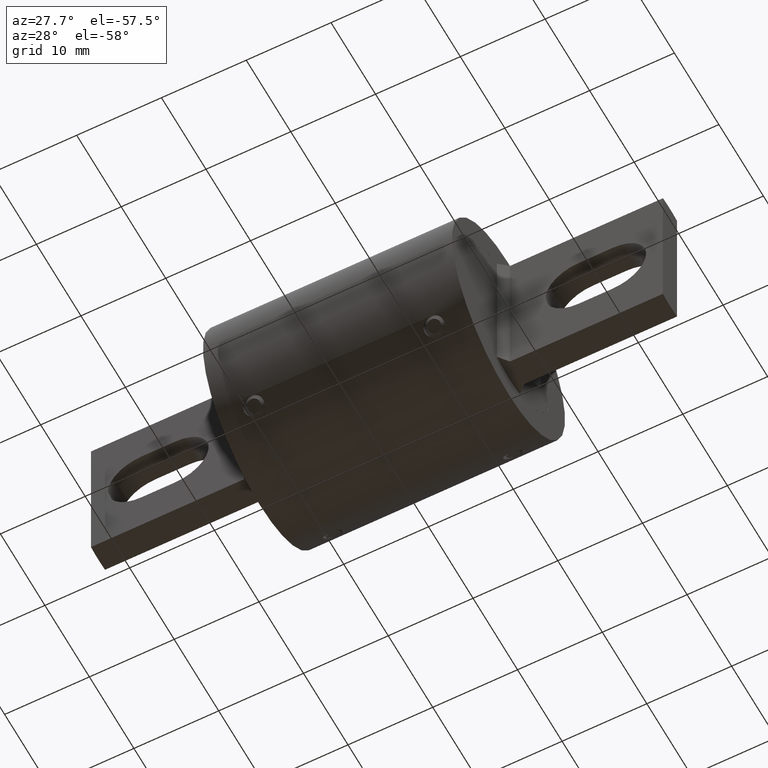
[diagram: clean part render]
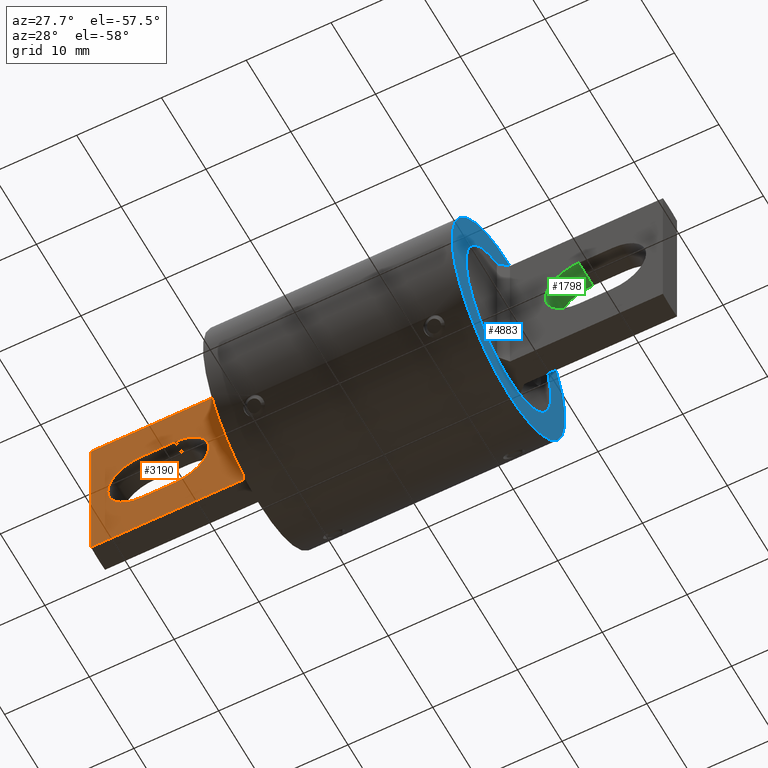
[diagram: same view with three faces highlighted in distinct colors, each labeled with its STEP entity id]
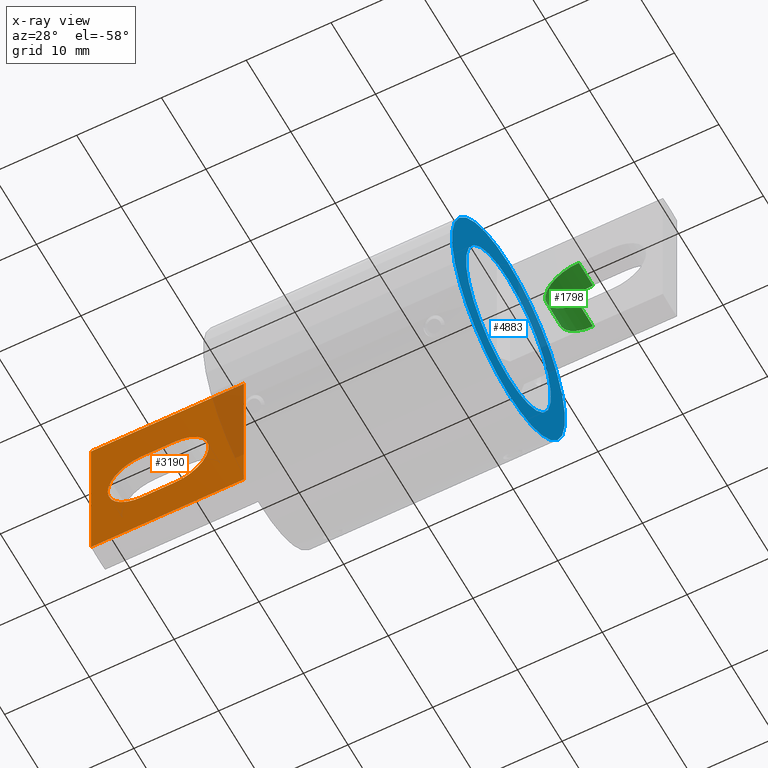
[diagram: x-ray of the same camera — body ghosted, the three highlighted faces saturated]
A machine part, auxiliary view with three faces highlighted in distinct colors.
The next image is the same camera in x-ray (body ghosted, the three faces saturated) — at least one of them is partly hidden behind the body in this view.
Their STEP definitions:

[orange] entity #3190 — the highlighted planar face has unit normal (0, -1, -0).
#170 = DIRECTION ( 'NONE',  ( 1.639038160135599900E-015, 3.053113317719178500E-016, 1.000000000000000000 ) ) ;
#181 = FACE_BOUND ( 'NONE', #463, .T. ) ;
#212 = PLANE ( 'NONE',  #1837 ) ;
#253 = CARTESIAN_POINT ( 'NONE',  ( -0.6180999999999999800, -0.06249999999999993800, 0.3656976209930826200 ) ) ;
#375 = EDGE_CURVE ( 'NONE', #2877, #5253, #2307, .T. ) ;
#463 = EDGE_LOOP ( 'NONE', ( #1794, #3218, #2097, #3995, #1661 ) ) ;
#547 = LINE ( 'NONE', #4023, #4917 ) ;
#653 = DIRECTION ( 'NONE',  ( 2.096245319270468400E-016, -1.000000000000000000, -3.816391647148977100E-016 ) ) ;
#656 = EDGE_LOOP ( 'NONE', ( #2777, #4102, #2760, #3584 ) ) ;
#672 = CARTESIAN_POINT ( 'NONE',  ( -1.328100000000000500, -0.06250000000000012500, 0.3656976209930839500 ) ) ;
#716 = FACE_OUTER_BOUND ( 'NONE', #656, .T. ) ;
#747 = LINE ( 'NONE', #1571, #2851 ) ;
#989 = CARTESIAN_POINT ( 'NONE',  ( -1.094099999999999600, -0.06250000000000031900, 0.1560000000000012200 ) ) ;
#1063 = CARTESIAN_POINT ( 'NONE',  ( -1.328100000000000700, -0.06250000000000031900, -0.3656976209930805100 ) ) ;
#1092 = CARTESIAN_POINT ( 'NONE',  ( -1.328100000000000500, -0.06250000000000012500, 0.3656976209930839500 ) ) ;
#1109 = DIRECTION ( 'NONE',  ( -1.000000000000000000, -2.096245319270477000E-016, 2.135355323886558800E-015 ) ) ;
#1131 = EDGE_CURVE ( 'NONE', #5253, #4937, #5308, .T. ) ;
#1255 = CARTESIAN_POINT ( 'NONE',  ( -1.094099999999999900, -0.06250000000000020800, 1.238887046350619100E-015 ) ) ;
#1306 = EDGE_CURVE ( 'NONE', #4103, #2877, #3702, .T. ) ;
#1388 = CARTESIAN_POINT ( 'NONE',  ( -0.5781000000000001700, -0.06250000000000011100, -0.1559999999999996400 ) ) ;
#1497 = VECTOR ( 'NONE', #4460, 39.37007874015748100 ) ;
#1571 = CARTESIAN_POINT ( 'NONE',  ( -0.5780999999999992800, -0.06249999999999997200, 0.3656976209930822300 ) ) ;
#1661 = ORIENTED_EDGE ( 'NONE', *, *, #1131, .F. ) ;
#1691 = CIRCLE ( 'NONE', #3294, 0.1559999999999999200 ) ;
#1758 = DIRECTION ( 'NONE',  ( 1.000000000000000000, 2.096245319270477000E-016, -1.917156602347880000E-015 ) ) ;
#1794 = ORIENTED_EDGE ( 'NONE', *, *, #375, .F. ) ;
#1837 = AXIS2_PLACEMENT_3D ( 'NONE', #3603, #653, #3177 ) ;
#1866 = CARTESIAN_POINT ( 'NONE',  ( -0.6180999999999998700, -0.06249999999999993800, 0.3656976209930826200 ) ) ;
#1895 = EDGE_CURVE ( 'NONE', #3842, #4618, #2348, .T. ) ;
#1938 = DIRECTION ( 'NONE',  ( -1.302295984605395700E-016, -1.000000000000000000, -3.816391647148969700E-016 ) ) ;
#1995 = DIRECTION ( 'NONE',  ( -1.000000000000000000, -2.096245319270477000E-016, 2.135355323886558800E-015 ) ) ;
#2097 = ORIENTED_EDGE ( 'NONE', *, *, #2652, .F. ) ;
#2133 = DIRECTION ( 'NONE',  ( 1.000000000000000000, 2.188980764154058300E-016, -2.135355323886559200E-015 ) ) ;
#2134 = CARTESIAN_POINT ( 'NONE',  ( -0.9376000000000001000, -0.06250000000000030500, -0.1559999999999990300 ) ) ;
#2307 = CIRCLE ( 'NONE', #5038, 0.1559999999999999200 ) ;
#2334 = CARTESIAN_POINT ( 'NONE',  ( -1.250099999999999800, -0.06250000000000019400, 1.595854924671602700E-015 ) ) ;
#2348 = LINE ( 'NONE', #253, #1497 ) ;
#2379 = CIRCLE ( 'NONE', #2692, 0.1559999999999999200 ) ;
#2416 = VERTEX_POINT ( 'NONE', #2334 ) ;
#2652 = EDGE_CURVE ( 'NONE', #2416, #4103, #1691, .T. ) ;
#2655 = VERTEX_POINT ( 'NONE', #672 ) ;
#2692 = AXIS2_PLACEMENT_3D ( 'NONE', #1255, #4326, #5384 ) ;
#2706 = EDGE_CURVE ( 'NONE', #3571, #2655, #5020, .T. ) ;
#2760 = ORIENTED_EDGE ( 'NONE', *, *, #4435, .T. ) ;
#2777 = ORIENTED_EDGE ( 'NONE', *, *, #3198, .F. ) ;
#2851 = VECTOR ( 'NONE', #1995, 39.37007874015748100 ) ;
#2877 = VERTEX_POINT ( 'NONE', #2134 ) ;
#2934 = VECTOR ( 'NONE', #170, 39.37007874015748100 ) ;
#3177 = DIRECTION ( 'NONE',  ( 1.000000000000000000, 2.096245319270476500E-016, -2.135355323886558800E-015 ) ) ;
#3190 = ADVANCED_FACE ( 'NONE', ( #181, #716 ), #212, .T. ) ;
#3198 = EDGE_CURVE ( 'NONE', #3842, #3571, #547, .T. ) ;
#3218 = ORIENTED_EDGE ( 'NONE', *, *, #1306, .F. ) ;
#3230 = CARTESIAN_POINT ( 'NONE',  ( -0.6181000000000012000, -0.06250000000000013900, -0.3656976209930818400 ) ) ;
#3294 = AXIS2_PLACEMENT_3D ( 'NONE', #5365, #1938, #3660 ) ;
#3316 = EDGE_CURVE ( 'NONE', #4937, #2416, #2379, .T. ) ;
#3397 = DIRECTION ( 'NONE',  ( -1.000000000000000000, -2.096245319270474500E-016, 2.789951488502596100E-015 ) ) ;
#3416 = CARTESIAN_POINT ( 'NONE',  ( -0.5780999999999997300, -0.06250000000000004200, 0.1559999999999999200 ) ) ;
#3426 = VECTOR ( 'NONE', #1758, 39.37007874015748100 ) ;
#3571 = VERTEX_POINT ( 'NONE', #1063 ) ;
#3584 = ORIENTED_EDGE ( 'NONE', *, *, #2706, .F. ) ;
#3603 = CARTESIAN_POINT ( 'NONE',  ( -0.5780999999999992800, -0.06249999999999997200, 0.3656976209930822300 ) ) ;
#3660 = DIRECTION ( 'NONE',  ( 1.000000000000000000, 2.188980764154058300E-016, -2.135355323886559200E-015 ) ) ;
#3702 = LINE ( 'NONE', #1388, #3426 ) ;
#3842 = VERTEX_POINT ( 'NONE', #3230 ) ;
#3995 = ORIENTED_EDGE ( 'NONE', *, *, #3316, .F. ) ;
#4023 = CARTESIAN_POINT ( 'NONE',  ( -0.5781000000000006100, -0.06250000000000018000, -0.3656976209930822300 ) ) ;
#4102 = ORIENTED_EDGE ( 'NONE', *, *, #1895, .T. ) ;
#4103 = VERTEX_POINT ( 'NONE', #4366 ) ;
#4210 = DIRECTION ( 'NONE',  ( -1.302295984605395700E-016, -1.000000000000000000, -3.816391647148969700E-016 ) ) ;
#4326 = DIRECTION ( 'NONE',  ( -1.302295984605395700E-016, -1.000000000000000000, -3.816391647148969700E-016 ) ) ;
#4366 = CARTESIAN_POINT ( 'NONE',  ( -1.094100000000000500, -0.06250000000000016700, -0.1559999999999987500 ) ) ;
#4435 = EDGE_CURVE ( 'NONE', #4618, #2655, #747, .T. ) ;
#4460 = DIRECTION ( 'NONE',  ( 1.639038160135599900E-015, 3.053113317719178500E-016, 1.000000000000000000 ) ) ;
#4618 = VERTEX_POINT ( 'NONE', #1866 ) ;
#4623 = CARTESIAN_POINT ( 'NONE',  ( -0.9375999999999998800, -0.06250000000000020800, 8.855388487250522700E-016 ) ) ;
#4917 = VECTOR ( 'NONE', #1109, 39.37007874015748100 ) ;
#4937 = VERTEX_POINT ( 'NONE', #989 ) ;
#5020 = LINE ( 'NONE', #1092, #2934 ) ;
#5038 = AXIS2_PLACEMENT_3D ( 'NONE', #4623, #4210, #2133 ) ;
#5111 = CARTESIAN_POINT ( 'NONE',  ( -0.9375999999999995400, -0.06250000000000023600, 0.1560000000000008000 ) ) ;
#5253 = VERTEX_POINT ( 'NONE', #5111 ) ;
#5308 = LINE ( 'NONE', #3416, #5383 ) ;
#5365 = CARTESIAN_POINT ( 'NONE',  ( -1.094099999999999900, -0.06250000000000020800, 1.238887046350619100E-015 ) ) ;
#5383 = VECTOR ( 'NONE', #3397, 39.37007874015748100 ) ;
#5384 = DIRECTION ( 'NONE',  ( 1.000000000000000000, 2.188980764154058300E-016, -2.135355323886559200E-015 ) ) ;

[blue] entity #4883 — the highlighted planar face has unit normal (1, 0, 0).
#239 = DIRECTION ( 'NONE',  ( 0.0000000000000000000, 0.0000000000000000000, -1.000000000000000000 ) ) ;
#442 = DIRECTION ( 'NONE',  ( 0.0000000000000000000, 0.0000000000000000000, -1.000000000000000000 ) ) ;
#468 = CARTESIAN_POINT ( 'NONE',  ( 0.5780999999999999500, 0.0000000000000000000, 0.5000000000000000000 ) ) ;
#471 = EDGE_CURVE ( 'NONE', #3940, #3641, #589, .T. ) ;
#509 = DIRECTION ( 'NONE',  ( 1.000000000000000000, 0.0000000000000000000, 0.0000000000000000000 ) ) ;
#540 = DIRECTION ( 'NONE',  ( 0.0000000000000000000, 0.0000000000000000000, -1.000000000000000000 ) ) ;
#580 = FACE_BOUND ( 'NONE', #2148, .T. ) ;
#589 = CIRCLE ( 'NONE', #3283, 0.5000000000000000000 ) ;
#658 = CARTESIAN_POINT ( 'NONE',  ( 0.5780999999999999500, 0.0000000000000000000, 0.0000000000000000000 ) ) ;
#683 = ORIENTED_EDGE ( 'NONE', *, *, #4141, .T. ) ;
#1134 = VERTEX_POINT ( 'NONE', #2582 ) ;
#1593 = AXIS2_PLACEMENT_3D ( 'NONE', #658, #3183, #239 ) ;
#1887 = CARTESIAN_POINT ( 'NONE',  ( 0.5780999999999999500, 4.592425496802573600E-017, -0.3750000000000000600 ) ) ;
#1893 = ORIENTED_EDGE ( 'NONE', *, *, #4594, .F. ) ;
#2113 = PLANE ( 'NONE',  #2884 ) ;
#2137 = ORIENTED_EDGE ( 'NONE', *, *, #471, .T. ) ;
#2148 = EDGE_LOOP ( 'NONE', ( #1893, #4976 ) ) ;
#2182 = AXIS2_PLACEMENT_3D ( 'NONE', #4746, #3950, #540 ) ;
#2225 = CARTESIAN_POINT ( 'NONE',  ( 0.5780999999999999500, 0.0000000000000000000, 0.0000000000000000000 ) ) ;
#2582 = CARTESIAN_POINT ( 'NONE',  ( 0.5780999999999999500, 0.0000000000000000000, 0.3750000000000000600 ) ) ;
#2839 = CARTESIAN_POINT ( 'NONE',  ( 0.5780999999999999500, 6.123233995736764800E-017, -0.5000000000000000000 ) ) ;
#2884 = AXIS2_PLACEMENT_3D ( 'NONE', #2951, #5027, #442 ) ;
#2951 = CARTESIAN_POINT ( 'NONE',  ( 0.5780999999999999500, 0.0000000000000000000, 0.0000000000000000000 ) ) ;
#2963 = CIRCLE ( 'NONE', #2182, 0.5000000000000000000 ) ;
#3030 = CARTESIAN_POINT ( 'NONE',  ( 0.5780999999999999500, 0.0000000000000000000, 0.0000000000000000000 ) ) ;
#3107 = CIRCLE ( 'NONE', #1593, 0.3750000000000000600 ) ;
#3153 = EDGE_LOOP ( 'NONE', ( #683, #2137 ) ) ;
#3183 = DIRECTION ( 'NONE',  ( 1.000000000000000000, 0.0000000000000000000, 0.0000000000000000000 ) ) ;
#3283 = AXIS2_PLACEMENT_3D ( 'NONE', #3030, #509, #3459 ) ;
#3302 = DIRECTION ( 'NONE',  ( 0.0000000000000000000, 0.0000000000000000000, -1.000000000000000000 ) ) ;
#3459 = DIRECTION ( 'NONE',  ( 0.0000000000000000000, 0.0000000000000000000, -1.000000000000000000 ) ) ;
#3618 = VERTEX_POINT ( 'NONE', #1887 ) ;
#3641 = VERTEX_POINT ( 'NONE', #468 ) ;
#3707 = EDGE_CURVE ( 'NONE', #3618, #1134, #5319, .T. ) ;
#3940 = VERTEX_POINT ( 'NONE', #2839 ) ;
#3950 = DIRECTION ( 'NONE',  ( 1.000000000000000000, 0.0000000000000000000, 0.0000000000000000000 ) ) ;
#4141 = EDGE_CURVE ( 'NONE', #3641, #3940, #2963, .T. ) ;
#4594 = EDGE_CURVE ( 'NONE', #1134, #3618, #3107, .T. ) ;
#4720 = FACE_OUTER_BOUND ( 'NONE', #3153, .T. ) ;
#4722 = AXIS2_PLACEMENT_3D ( 'NONE', #2225, #5095, #3302 ) ;
#4746 = CARTESIAN_POINT ( 'NONE',  ( 0.5780999999999999500, 0.0000000000000000000, 0.0000000000000000000 ) ) ;
#4883 = ADVANCED_FACE ( 'NONE', ( #4720, #580 ), #2113, .T. ) ;
#4976 = ORIENTED_EDGE ( 'NONE', *, *, #3707, .F. ) ;
#5027 = DIRECTION ( 'NONE',  ( 1.000000000000000000, 0.0000000000000000000, 0.0000000000000000000 ) ) ;
#5095 = DIRECTION ( 'NONE',  ( 1.000000000000000000, 0.0000000000000000000, 0.0000000000000000000 ) ) ;
#5319 = CIRCLE ( 'NONE', #4722, 0.3750000000000000600 ) ;

[green] entity #1798 — the highlighted cylindrical surface (partial cylindrical patch) has radius 3.9624 mm, axis along (-0, 1, -0).
#79 = AXIS2_PLACEMENT_3D ( 'NONE', #2548, #4648, #4501 ) ;
#290 = VERTEX_POINT ( 'NONE', #4077 ) ;
#408 = CIRCLE ( 'NONE', #4198, 0.1559999999999998900 ) ;
#457 = CARTESIAN_POINT ( 'NONE',  ( 0.9375999999999998800, 0.06249999999999989600, -8.783036460323196500E-017 ) ) ;
#503 = CARTESIAN_POINT ( 'NONE',  ( 0.9375999999999998800, 0.06249999999999991700, 0.1559999999999998100 ) ) ;
#647 = CARTESIAN_POINT ( 'NONE',  ( 0.9375999999999998800, -0.06250000000000019400, -0.1559999999999999400 ) ) ;
#729 = VERTEX_POINT ( 'NONE', #647 ) ;
#892 = EDGE_CURVE ( 'NONE', #290, #5234, #408, .T. ) ;
#978 = VECTOR ( 'NONE', #5243, 39.37007874015748100 ) ;
#1287 = DIRECTION ( 'NONE',  ( -1.387778780781445500E-017, 1.000000000000000000, -7.640040074217814700E-017 ) ) ;
#1355 = CYLINDRICAL_SURFACE ( 'NONE', #3344, 0.1559999999999999200 ) ;
#1524 = ORIENTED_EDGE ( 'NONE', *, *, #2444, .T. ) ;
#1782 = ORIENTED_EDGE ( 'NONE', *, *, #2911, .F. ) ;
#1798 = ADVANCED_FACE ( 'NONE', ( #4034 ), #1355, .F. ) ;
#2103 = LINE ( 'NONE', #4832, #978 ) ;
#2444 = EDGE_CURVE ( 'NONE', #729, #290, #2103, .T. ) ;
#2548 = CARTESIAN_POINT ( 'NONE',  ( 0.9375999999999998800, -0.06250000000000009700, -7.828031451045968600E-017 ) ) ;
#2911 = EDGE_CURVE ( 'NONE', #4673, #5234, #3141, .T. ) ;
#3020 = ORIENTED_EDGE ( 'NONE', *, *, #892, .T. ) ;
#3141 = LINE ( 'NONE', #3186, #4264 ) ;
#3186 = CARTESIAN_POINT ( 'NONE',  ( 0.9375999999999998800, -0.3735000000000000500, 0.1559999999999998600 ) ) ;
#3319 = CARTESIAN_POINT ( 'NONE',  ( 0.9375999999999998800, -0.06250000000000013900, 0.1559999999999998100 ) ) ;
#3344 = AXIS2_PLACEMENT_3D ( 'NONE', #4499, #1287, #5203 ) ;
#3678 = DIRECTION ( 'NONE',  ( -1.387778780781445400E-017, 1.000000000000000000, -7.640040074217814700E-017 ) ) ;
#3794 = ORIENTED_EDGE ( 'NONE', *, *, #4214, .T. ) ;
#4034 = FACE_OUTER_BOUND ( 'NONE', #4942, .T. ) ;
#4077 = CARTESIAN_POINT ( 'NONE',  ( 0.9375999999999998800, 0.06249999999999980600, -0.1559999999999999400 ) ) ;
#4198 = AXIS2_PLACEMENT_3D ( 'NONE', #457, #4628, #4213 ) ;
#4213 = DIRECTION ( 'NONE',  ( 0.0000000000000000000, -5.472451910385146500E-017, 1.000000000000000000 ) ) ;
#4214 = EDGE_CURVE ( 'NONE', #4673, #729, #5264, .T. ) ;
#4264 = VECTOR ( 'NONE', #3678, 39.37007874015748100 ) ;
#4499 = CARTESIAN_POINT ( 'NONE',  ( 0.9375999999999998800, -0.3735000000000000500, -5.451978987964229300E-017 ) ) ;
#4501 = DIRECTION ( 'NONE',  ( -1.000000000000000000, 0.0000000000000000000, 0.0000000000000000000 ) ) ;
#4628 = DIRECTION ( 'NONE',  ( -1.387778780781444900E-017, 1.000000000000000000, 1.803890050165906700E-016 ) ) ;
#4648 = DIRECTION ( 'NONE',  ( 1.387778780781445500E-017, -1.000000000000000000, 7.640040074217814700E-017 ) ) ;
#4673 = VERTEX_POINT ( 'NONE', #3319 ) ;
#4832 = CARTESIAN_POINT ( 'NONE',  ( 0.9375999999999998800, -0.3735000000000000500, -0.1559999999999999200 ) ) ;
#4942 = EDGE_LOOP ( 'NONE', ( #3794, #1524, #3020, #1782 ) ) ;
#5203 = DIRECTION ( 'NONE',  ( 1.000000000000000000, 0.0000000000000000000, 0.0000000000000000000 ) ) ;
#5234 = VERTEX_POINT ( 'NONE', #503 ) ;
#5243 = DIRECTION ( 'NONE',  ( -1.387778780781445400E-017, 1.000000000000000000, -7.640040074217814700E-017 ) ) ;
#5264 = CIRCLE ( 'NONE', #79, 0.1559999999999999200 ) ;